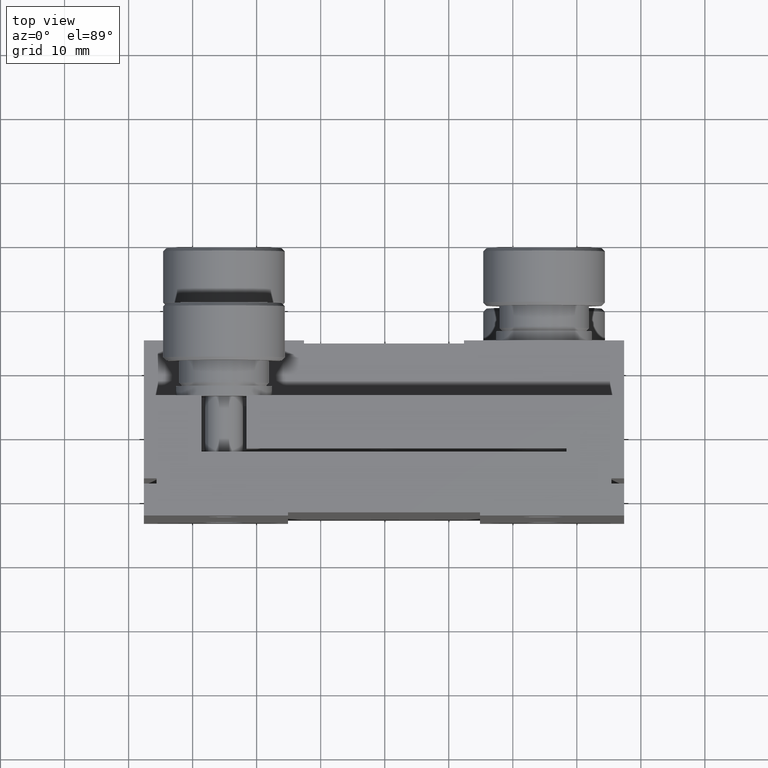
[diagram: clean part render]
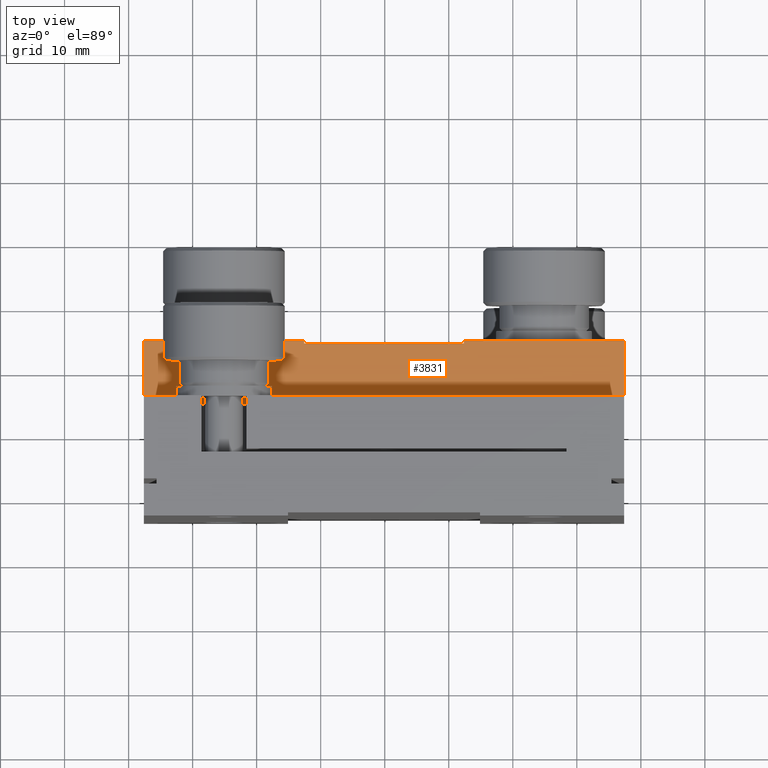
[diagram: same view with one face highlighted and labeled with its STEP entity id]
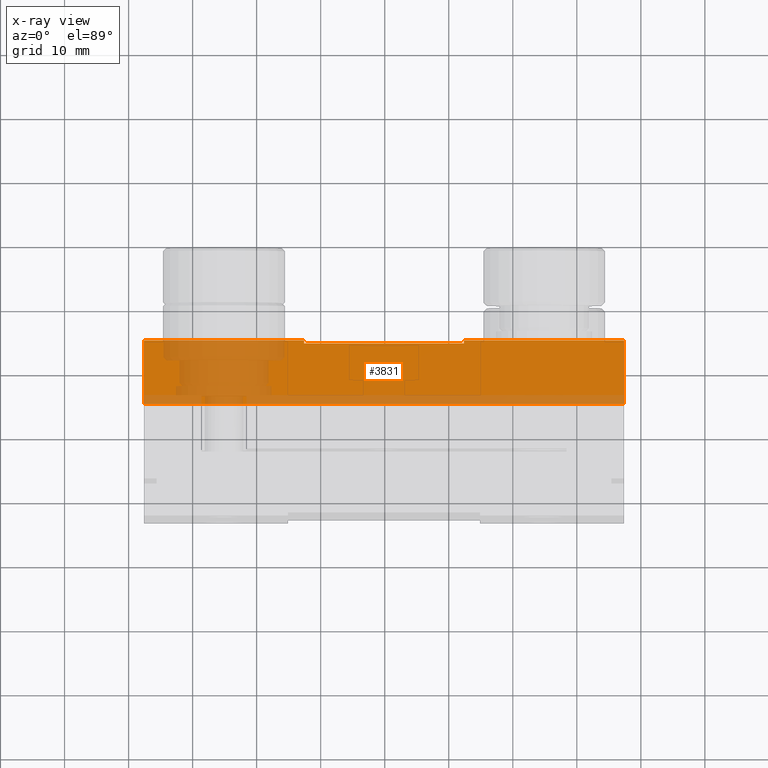
[diagram: x-ray of the same camera — body ghosted, the highlighted face saturated]
A machine part, top view. The second image highlights one B-rep face of the part: STEP entity #3831.
The next image is the same camera in x-ray: the body ghosted, the highlighted face saturated — about 33% of this face is hidden behind the body in this view.
In plain terms, the highlighted planar face has unit normal (-0, 0, 1).
Its self-contained STEP definition (entity closure, byte-faithful):
#42 = CARTESIAN_POINT ( 'NONE',  ( 37.38646684831970600, 14.62107175295186000, 12.50000000000000500 ) ) ;
#48 = ORIENTED_EDGE ( 'NONE', *, *, #4938, .F. ) ;
#65 = VERTEX_POINT ( 'NONE', #6400 ) ;
#176 = CARTESIAN_POINT ( 'NONE',  ( 12.38646684831970800, 14.62107175295186000, 12.50000000000000500 ) ) ;
#329 = LINE ( 'NONE', #4665, #479 ) ;
#479 = VECTOR ( 'NONE', #4579, 1000.000000000000000 ) ;
#583 = CARTESIAN_POINT ( 'NONE',  ( -12.61353315168023700, 14.62107175295186000, 12.50000000000000500 ) ) ;
#896 = FACE_OUTER_BOUND ( 'NONE', #3763, .T. ) ;
#973 = CARTESIAN_POINT ( 'NONE',  ( 12.38646684831970500, 14.12107175295186000, 12.50000000000000500 ) ) ;
#1112 = PLANE ( 'NONE',  #4889 ) ;
#1130 = DIRECTION ( 'NONE',  ( 1.000000000000000000, 0.0000000000000000000, 0.0000000000000000000 ) ) ;
#1150 = LINE ( 'NONE', #3277, #3199 ) ;
#1204 = LINE ( 'NONE', #2301, #2212 ) ;
#1416 = VECTOR ( 'NONE', #4652, 1000.000000000000000 ) ;
#1473 = EDGE_CURVE ( 'NONE', #2191, #2704, #5082, .T. ) ;
#1552 = CARTESIAN_POINT ( 'NONE',  ( 37.38646684831970600, 4.621071752951859700, 12.50000000000000500 ) ) ;
#1694 = CARTESIAN_POINT ( 'NONE',  ( -61.74682388916181000, 4.621071752951859700, 12.50000000000000500 ) ) ;
#1720 = DIRECTION ( 'NONE',  ( 1.000000000000000000, 0.0000000000000000000, 0.0000000000000000000 ) ) ;
#1759 = CARTESIAN_POINT ( 'NONE',  ( -61.74682388916181000, 4.621071752951859700, 12.50000000000000500 ) ) ;
#1824 = ORIENTED_EDGE ( 'NONE', *, *, #3209, .F. ) ;
#1830 = VECTOR ( 'NONE', #2059, 1000.000000000000000 ) ;
#1940 = ORIENTED_EDGE ( 'NONE', *, *, #1473, .T. ) ;
#1949 = VERTEX_POINT ( 'NONE', #6446 ) ;
#2013 = VECTOR ( 'NONE', #5382, 1000.000000000000000 ) ;
#2033 = VECTOR ( 'NONE', #5423, 1000.000000000000000 ) ;
#2059 = DIRECTION ( 'NONE',  ( 0.0000000000000000000, 1.000000000000000000, 0.0000000000000000000 ) ) ;
#2191 = VERTEX_POINT ( 'NONE', #5617 ) ;
#2212 = VECTOR ( 'NONE', #5386, 1000.000000000000000 ) ;
#2275 = ORIENTED_EDGE ( 'NONE', *, *, #2276, .F. ) ;
#2276 = EDGE_CURVE ( 'NONE', #2191, #65, #5897, .T. ) ;
#2301 = CARTESIAN_POINT ( 'NONE',  ( -61.74682388916181000, 14.62107175295186000, 12.50000000000000500 ) ) ;
#2651 = CARTESIAN_POINT ( 'NONE',  ( -37.61353315168029400, 4.621071752951859700, 12.50000000000000500 ) ) ;
#2692 = DIRECTION ( 'NONE',  ( -0.0000000000000000000, 1.000000000000000000, -0.0000000000000000000 ) ) ;
#2704 = VERTEX_POINT ( 'NONE', #3202 ) ;
#2878 = EDGE_CURVE ( 'NONE', #2704, #4173, #4202, .T. ) ;
#2997 = ORIENTED_EDGE ( 'NONE', *, *, #2878, .T. ) ;
#3092 = ORIENTED_EDGE ( 'NONE', *, *, #3677, .F. ) ;
#3199 = VECTOR ( 'NONE', #2692, 1000.000000000000000 ) ;
#3202 = CARTESIAN_POINT ( 'NONE',  ( 37.38646684831970600, 4.621071752951859700, 12.50000000000000500 ) ) ;
#3209 = EDGE_CURVE ( 'NONE', #4903, #1949, #6049, .T. ) ;
#3229 = EDGE_CURVE ( 'NONE', #4903, #5458, #1150, .T. ) ;
#3277 = CARTESIAN_POINT ( 'NONE',  ( -12.61353315168023700, 14.12107175295186000, 12.50000000000000500 ) ) ;
#3413 = ORIENTED_EDGE ( 'NONE', *, *, #3229, .T. ) ;
#3494 = LINE ( 'NONE', #973, #2033 ) ;
#3677 = EDGE_CURVE ( 'NONE', #65, #5458, #329, .T. ) ;
#3763 = EDGE_LOOP ( 'NONE', ( #3413, #3092, #2275, #1940, #2997, #48, #5095, #1824 ) ) ;
#3831 = ADVANCED_FACE ( 'NONE', ( #896 ), #1112, .T. ) ;
#4173 = VERTEX_POINT ( 'NONE', #42 ) ;
#4198 = CARTESIAN_POINT ( 'NONE',  ( -12.61353315168023700, 14.12107175295186000, 12.50000000000000500 ) ) ;
#4202 = LINE ( 'NONE', #1552, #1830 ) ;
#4579 = DIRECTION ( 'NONE',  ( 1.000000000000000000, -0.0000000000000000000, 0.0000000000000000000 ) ) ;
#4652 = DIRECTION ( 'NONE',  ( 0.0000000000000000000, 1.000000000000000000, 0.0000000000000000000 ) ) ;
#4665 = CARTESIAN_POINT ( 'NONE',  ( -61.74682388916181000, 14.62107175295186000, 12.50000000000000500 ) ) ;
#4889 = AXIS2_PLACEMENT_3D ( 'NONE', #1694, #5239, #1720 ) ;
#4903 = VERTEX_POINT ( 'NONE', #5312 ) ;
#4938 = EDGE_CURVE ( 'NONE', #6317, #4173, #1204, .T. ) ;
#5082 = LINE ( 'NONE', #1759, #2013 ) ;
#5095 = ORIENTED_EDGE ( 'NONE', *, *, #6254, .F. ) ;
#5239 = DIRECTION ( 'NONE',  ( -0.0000000000000000000, 0.0000000000000000000, 1.000000000000000000 ) ) ;
#5312 = CARTESIAN_POINT ( 'NONE',  ( -12.61353315168023700, 14.12107175295186000, 12.50000000000000500 ) ) ;
#5382 = DIRECTION ( 'NONE',  ( 1.000000000000000000, -0.0000000000000000000, 0.0000000000000000000 ) ) ;
#5386 = DIRECTION ( 'NONE',  ( 1.000000000000000000, -0.0000000000000000000, 0.0000000000000000000 ) ) ;
#5423 = DIRECTION ( 'NONE',  ( -0.0000000000000000000, 1.000000000000000000, -0.0000000000000000000 ) ) ;
#5458 = VERTEX_POINT ( 'NONE', #583 ) ;
#5617 = CARTESIAN_POINT ( 'NONE',  ( -37.61353315168029400, 4.621071752951859700, 12.50000000000000500 ) ) ;
#5888 = VECTOR ( 'NONE', #1130, 1000.000000000000000 ) ;
#5897 = LINE ( 'NONE', #2651, #1416 ) ;
#6049 = LINE ( 'NONE', #4198, #5888 ) ;
#6254 = EDGE_CURVE ( 'NONE', #1949, #6317, #3494, .T. ) ;
#6317 = VERTEX_POINT ( 'NONE', #176 ) ;
#6400 = CARTESIAN_POINT ( 'NONE',  ( -37.61353315168029400, 14.62107175295186000, 12.50000000000000500 ) ) ;
#6446 = CARTESIAN_POINT ( 'NONE',  ( 12.38646684831970500, 14.12107175295186000, 12.50000000000000500 ) ) ;